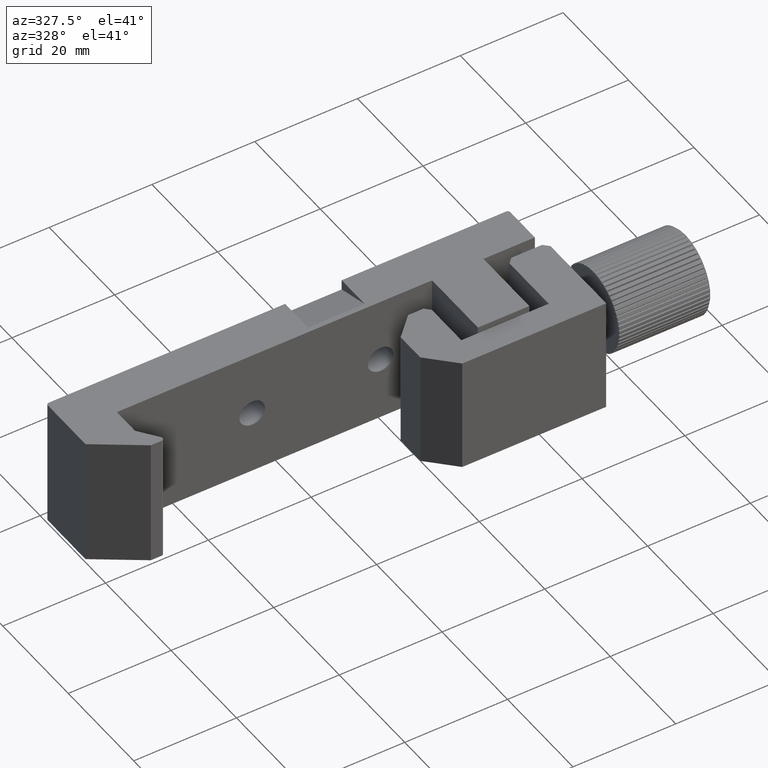
[diagram: clean part render]
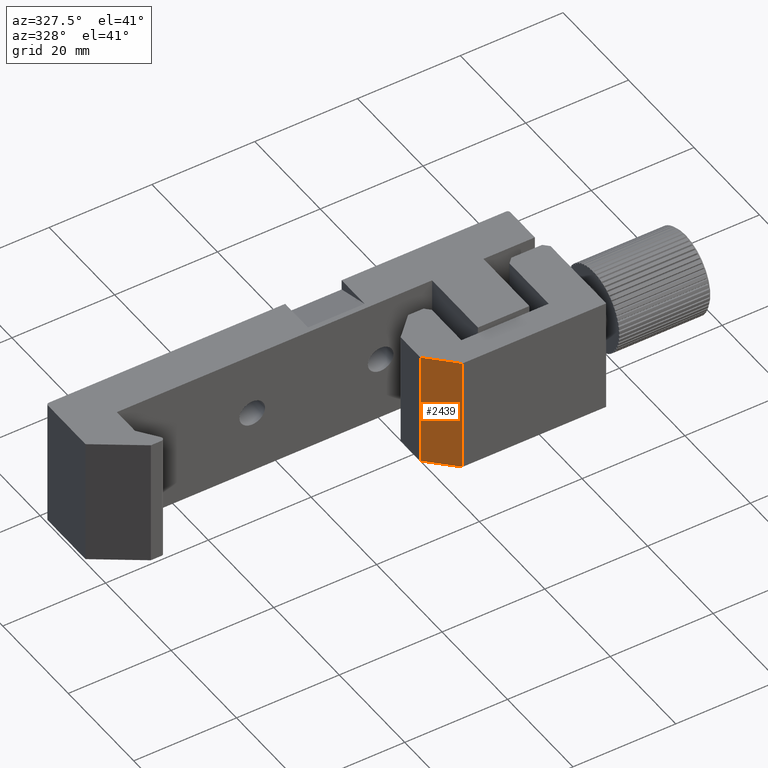
[diagram: same view with one face highlighted and labeled with its STEP entity id]
A machine part, auxiliary view. The second image highlights one B-rep face of the part: STEP entity #2439.
In plain terms, the highlighted planar face has unit normal (0.7071, 0.7071, -0).
Its self-contained STEP definition (entity closure, byte-faithful):
#752 = LINE ( 'NONE', #3289, #754 ) ;
#754 = VECTOR ( 'NONE', #3284, 1000.000000000000100 ) ;
#804 = LINE ( 'NONE', #3367, #807 ) ;
#807 = VECTOR ( 'NONE', #3369, 1000.000000000000000 ) ;
#808 = LINE ( 'NONE', #3371, #811 ) ;
#810 = LINE ( 'NONE', #3373, #813 ) ;
#811 = VECTOR ( 'NONE', #3372, 1000.000000000000100 ) ;
#813 = VECTOR ( 'NONE', #3375, 1000.000000000000000 ) ;
#1614 = AXIS2_PLACEMENT_3D ( 'NONE', #2801, #2803, #2804 ) ;
#1969 = EDGE_LOOP ( 'NONE', ( #5069, #5070, #5071, #5072 ) ) ;
#2174 = CARTESIAN_POINT ( 'NONE',  ( -16.91182491154697600, -9.940469573043223800, -11.25000000000000000 ) ) ;
#2184 = CARTESIAN_POINT ( 'NONE',  ( -21.91182491154697600, -4.940469573043224600, 11.25000000000000000 ) ) ;
#2185 = CARTESIAN_POINT ( 'NONE',  ( -16.91182491154697600, -9.940469573043223800, 11.25000000000000000 ) ) ;
#2439 = ADVANCED_FACE ( 'NONE', ( #4706 ), #3012, .F. ) ;
#2801 = CARTESIAN_POINT ( 'NONE',  ( -2.911824911546975400, -23.94046957304322400, 11.25000000000000000 ) ) ;
#2803 = DIRECTION ( 'NONE',  ( 0.7071067811865475700, 0.7071067811865475700, -0.0000000000000000000 ) ) ;
#2804 = DIRECTION ( 'NONE',  ( -0.7071067811865474600, 0.7071067811865474600, 0.0000000000000000000 ) ) ;
#3012 = PLANE ( 'NONE',  #1614 ) ;
#3284 = DIRECTION ( 'NONE',  ( 0.7071067811865474600, -0.7071067811865474600, 0.0000000000000000000 ) ) ;
#3289 = CARTESIAN_POINT ( 'NONE',  ( -2.911824911546975400, -23.94046957304322400, 11.25000000000000000 ) ) ;
#3367 = CARTESIAN_POINT ( 'NONE',  ( -21.91182491154697600, -4.940469573043224600, 11.25000000000000000 ) ) ;
#3369 = DIRECTION ( 'NONE',  ( -0.0000000000000000000, -0.0000000000000000000, -1.000000000000000000 ) ) ;
#3371 = CARTESIAN_POINT ( 'NONE',  ( -2.911824911546975400, -23.94046957304322400, -11.25000000000000000 ) ) ;
#3372 = DIRECTION ( 'NONE',  ( 0.7071067811865474600, -0.7071067811865474600, 0.0000000000000000000 ) ) ;
#3373 = CARTESIAN_POINT ( 'NONE',  ( -16.91182491154697600, -9.940469573043223800, 11.25000000000000000 ) ) ;
#3375 = DIRECTION ( 'NONE',  ( -0.0000000000000000000, -0.0000000000000000000, -1.000000000000000000 ) ) ;
#4203 = CARTESIAN_POINT ( 'NONE',  ( -21.91182491154697600, -4.940469573043224600, -11.25000000000000000 ) ) ;
#4706 = FACE_OUTER_BOUND ( 'NONE', #1969, .T. ) ;
#4895 = VERTEX_POINT ( 'NONE', #2174 ) ;
#4901 = VERTEX_POINT ( 'NONE', #2184 ) ;
#4902 = VERTEX_POINT ( 'NONE', #2185 ) ;
#5069 = ORIENTED_EDGE ( 'NONE', *, *, #6911, .T. ) ;
#5070 = ORIENTED_EDGE ( 'NONE', *, *, #6912, .F. ) ;
#5071 = ORIENTED_EDGE ( 'NONE', *, *, #6878, .F. ) ;
#5072 = ORIENTED_EDGE ( 'NONE', *, *, #6909, .T. ) ;
#5497 = VERTEX_POINT ( 'NONE', #4203 ) ;
#6878 = EDGE_CURVE ( 'NONE', #4901, #4902, #752, .T. ) ;
#6909 = EDGE_CURVE ( 'NONE', #4901, #5497, #804, .T. ) ;
#6911 = EDGE_CURVE ( 'NONE', #5497, #4895, #808, .T. ) ;
#6912 = EDGE_CURVE ( 'NONE', #4902, #4895, #810, .T. ) ;